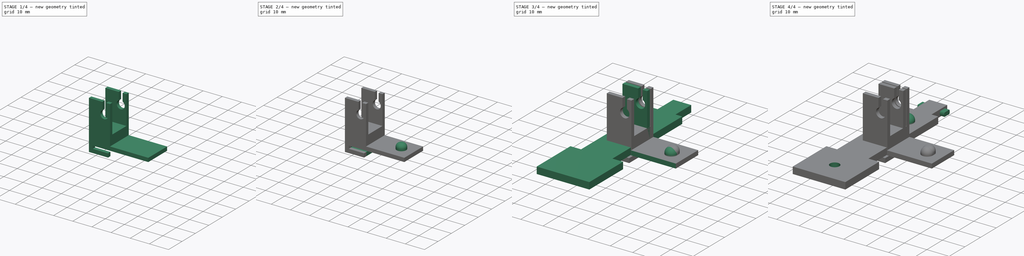
[diagram: build sequence overview — one tinted view per stage of 4, left to right]
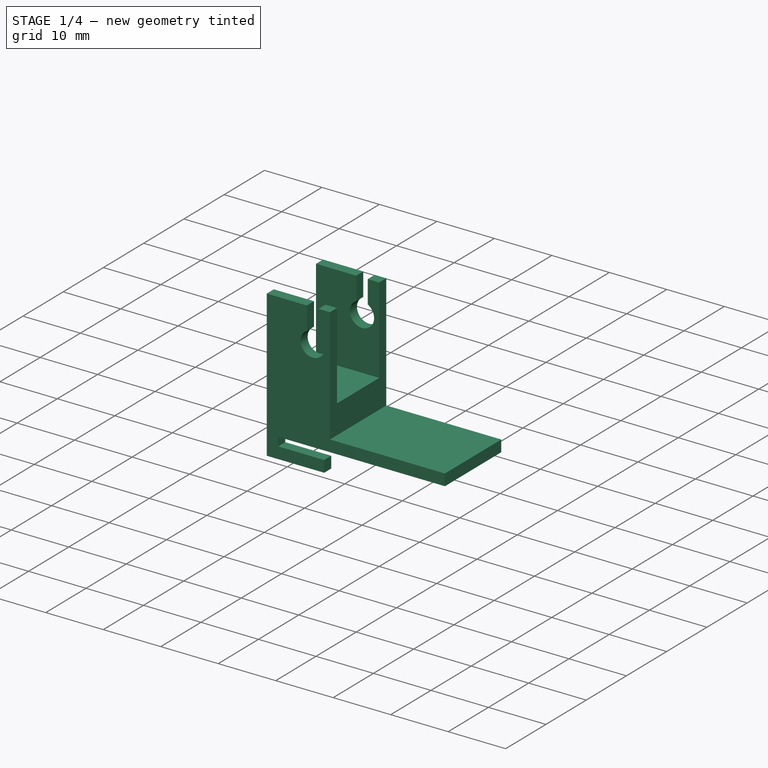
[diagram: stage 1 of 4 — iso view after this stage's code; geometry added in this stage tinted green]
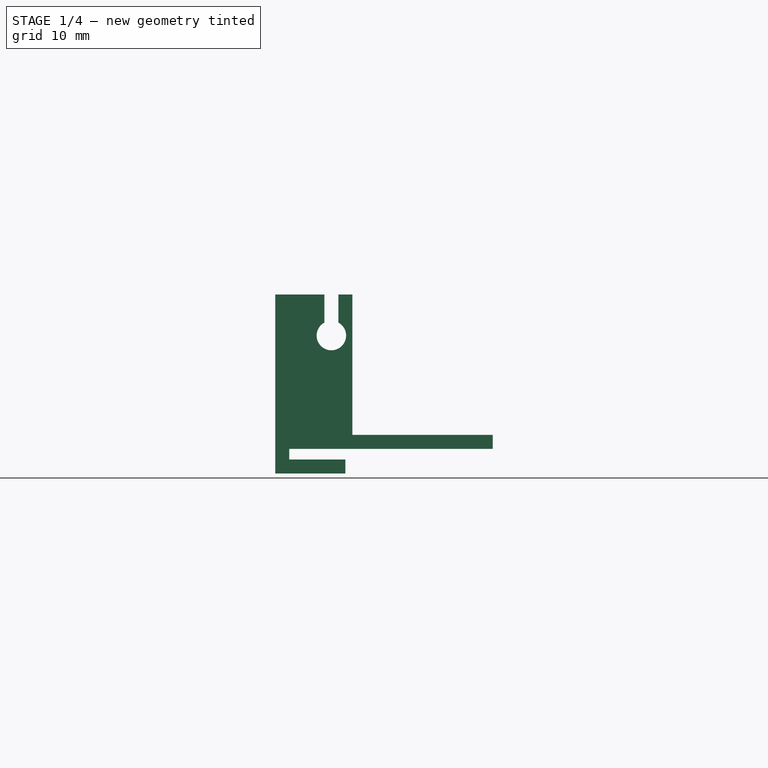
[diagram: stage 1 of 4 — front view after this stage's code; geometry added in this stage tinted green]
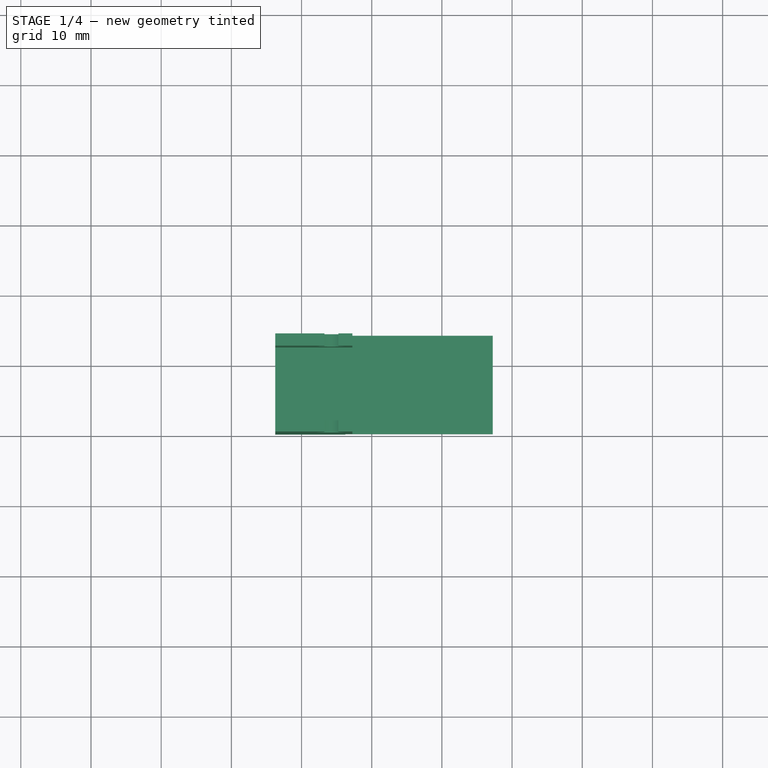
[diagram: stage 1 of 4 — top view after this stage's code; geometry added in this stage tinted green]
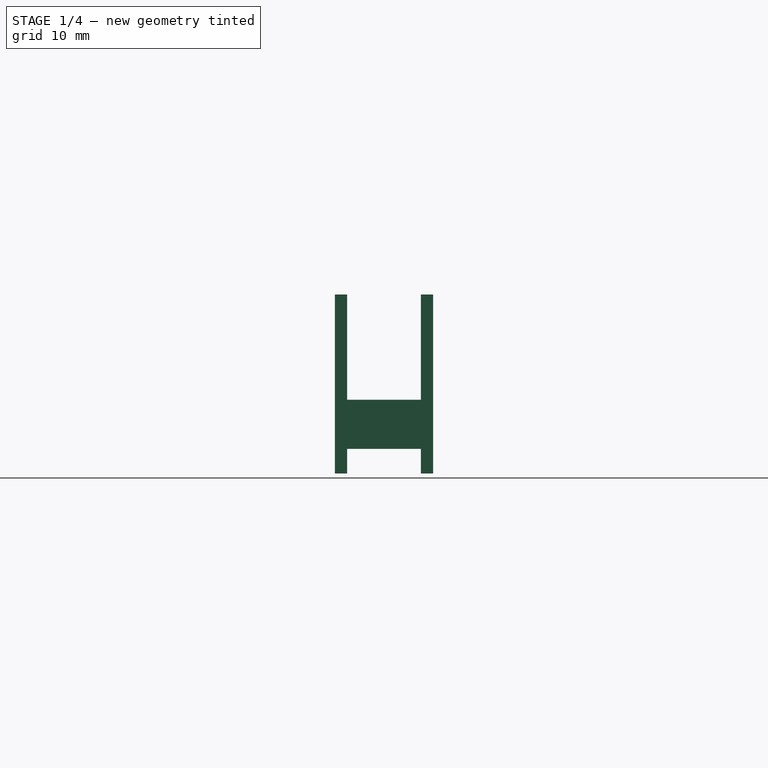
[diagram: stage 1 of 4 — right view after this stage's code; geometry added in this stage tinted green]
FCSTD DOCUMENT  (FreeCAD 0.20R29410 (Git))
Label: widekey_littleassembly
License: All rights reserved
LicenseURL: http://en.wikipedia.org/wiki/All_rights_reserved
objects: Sketcher::SketchObject×11, PartDesign::Pad×10, PartDesign::Fillet×3, PartDesign::Body×2, PartDesign::Pocket×1, PartDesign::Plane×1, App::MeasureDistance×1
note: 42 computed .brp shape members not serialized (recipe doc carries the construction recipe); baked Part::Feature solids carry a one-line shape summary decoded from their .brp

FEATURE [Sketcher::SketchObject] Sketch002
  FullyConstrained = true
  MapMode = 5
  Placement = pos=(0,2,0) rot=(1,0,0;1.5708rad)
  sketch-geometry (13):
    g0: LineSegment StartX=7.25 StartY=0 StartZ=0 EndX=7.25 EndY=22 EndZ=0
    g1: LineSegment StartX=-3.75 StartY=22 StartZ=0 EndX=-3.75 EndY=0 EndZ=0
    g2: LineSegment StartX=-3.75 StartY=0 StartZ=0 EndX=-3.75 EndY=-3.5 EndZ=0
    g3: LineSegment StartX=-3.75 StartY=-3.5 StartZ=0 EndX=6.25 EndY=-3.5 EndZ=0
    g4: LineSegment StartX=6.25 StartY=-3.5 StartZ=0 EndX=6.25 EndY=-1.5 EndZ=0
    g5: LineSegment StartX=6.25 StartY=-1.5 StartZ=0 EndX=-1.75 EndY=-1.5 EndZ=0
    g6: LineSegment StartX=-1.75 StartY=-1.5 StartZ=0 EndX=-1.75 EndY=0 EndZ=0
    g7: LineSegment StartX=-1.75 StartY=0 StartZ=0 EndX=7.25 EndY=0 EndZ=0
    g8: ArcOfCircle CenterX=4.25 CenterY=16.1534 CenterZ=0 NormalX=0 NormalY=0 NormalZ=1 AngleXU=0 Radius=2.1 StartAngle=2.06711 EndAngle=7.35766
    g9: LineSegment StartX=5.25 StartY=18 StartZ=0 EndX=5.25 EndY=22 EndZ=0
    g10: LineSegment StartX=5.25 StartY=22 StartZ=0 EndX=7.25 EndY=22 EndZ=0
    g11: LineSegment StartX=-3.75 StartY=22 StartZ=0 EndX=3.25 EndY=22 EndZ=0
    g12: LineSegment StartX=3.25 StartY=22 StartZ=0 EndX=3.25 EndY=18 EndZ=0
  constraints (40):
    c: Vertical(g0)
    c: PointOnObject(g1,g-1)
    c: Vertical(g1)
    c: DistanceY(g0,g0) = 22
    c: DistanceY(g1,g1) = 22
    c: DistanceX(g1,g0) = 11
    c: DistanceX(g1) = -3.75
    c: Coincident(g1,g2)
    c: Vertical(g2)
    c: Coincident(g2,g3)
    c: Horizontal(g3)
    c: Coincident(g3,g4)
    c: Vertical(g4)
    c: Coincident(g4,g5)
    c: Horizontal(g5)
    c: Coincident(g5,g6)
    c: PointOnObject(g6,g-1)
    c: Vertical(g6)
    c: Coincident(g6,g7)
    c: Coincident(g7,g0)
    c: Horizontal(g7)
    c: DistanceY(g6,g6) = 1.5
    c: DistanceY(g4,g4) = 2
    c: DistanceX(g5,g-1) = 1.75
    c: DistanceX(g3,g3) = 10
    c: Radius(g8) = 2.1
    c: Horizontal(g8,g8)
    c: DistanceX(g8,g8) = 2
    c: DistanceX(g8,g0) = 2
    c: DistanceY(g8,g0) = 4
    c: Vertical(g9)
    c: Coincident(g9,g10)
    c: Coincident(g10,g0)
    c: Horizontal(g10)
    c: Coincident(g1,g11)
    c: Horizontal(g11)
    c: Coincident(g11,g12)
    c: Coincident(g12,g8)
    c: Vertical(g12)
    c: Coincident(g9,g8)
FEATURE [PartDesign::Pad] Pad
  Direction = (0,-1,2e-16)
  Length = 1.75
  Length2 = 10
  Placement = pos=(0,2,0) rot=(1,0,0;1.5708rad)
  Profile = -> Sketch002
  ReferenceAxis = -> Sketch002 [N_Axis]
  Type = 0
FEATURE [Sketcher::SketchObject] Sketch
  FullyConstrained = true
  MapMode = 5
  Placement = pos=(0,2,0) rot=(-1,0,0;1.5708rad)
  Support = -> [Pad]
  sketch-geometry (4):
    g0: LineSegment StartX=-3.75 StartY=0 StartZ=0 EndX=7.25 EndY=0 EndZ=0
    g1: LineSegment StartX=7.25 StartY=0 StartZ=0 EndX=7.25 EndY=-7 EndZ=0
    g2: LineSegment StartX=7.25 StartY=-7 StartZ=0 EndX=-3.75 EndY=-7 EndZ=0
    g3: LineSegment StartX=-3.75 StartY=-7 StartZ=0 EndX=-3.75 EndY=0 EndZ=0
  constraints (12):
    c: Coincident(g0,g1)
    c: Coincident(g1,g2)
    c: Coincident(g2,g3)
    c: Coincident(g3,g0)
    c: Horizontal(g0)
    c: Horizontal(g2)
    c: Vertical(g1)
    c: Vertical(g3)
    c: PointOnObject(g0,g-1)
    c: DistanceX(g0,g0) = 11
    c: DistanceY(g1,g1) = 7
    c: DistanceX(g-1,g0) = 7.25
FEATURE [PartDesign::Pad] Pad001
  BaseFeature = -> Pad
  Direction = (0,1,-2e-16)
  Length = 10.5
  Length2 = 10
  Placement = pos=(0,2,0) rot=(1,0,0;1.5708rad)
  Profile = -> Sketch
  ReferenceAxis = -> Sketch [N_Axis]
  Type = 0
FEATURE [PartDesign::Body] Body001  label="key_1"
  Group = -> [Sketch005,Pad005,Sketch001,Pad006,Sketch006,Pocket,Sketch007,Pad007,Fillet001]
  Origin = -> Origin001
  Placement = pos=(37.75,-1.86552,19.218) rot=(0.707107,-0.707107,0;3.14159rad)
  Tip = -> Fillet001
FEATURE [PartDesign::Plane] DatumPlane
  Length = 62.4725
  MapMode = 5
  Placement = pos=(0,12.5,-2.3e-15) rot=(-1,0,0;1.5708rad)
  ResizeMode = 0
  Support = -> [Pad001]
  Width = 60.2225
FEATURE [Sketcher::SketchObject] CopySketch003
  AttachmentOffset = pos=(0,0,0) rot=(-1,0,0;3.14159rad)
  FullyConstrained = true
  MapMode = 5
  Placement = pos=(0,12.5,-2.3e-15) rot=(-1,0,0;4.71239rad)
  Support = -> [DatumPlane]
  sketch-geometry (13):
    g0: LineSegment StartX=7.25 StartY=0 StartZ=0 EndX=7.25 EndY=22 EndZ=0
    g1: LineSegment StartX=-3.75 StartY=22 StartZ=0 EndX=-3.75 EndY=0 EndZ=0
    g2: LineSegment StartX=-3.75 StartY=0 StartZ=0 EndX=-3.75 EndY=-3.5 EndZ=0
    g3: LineSegment StartX=-3.75 StartY=-3.5 StartZ=0 EndX=6.25 EndY=-3.5 EndZ=0
    g4: LineSegment StartX=6.25 StartY=-3.5 StartZ=0 EndX=6.25 EndY=-1.5 EndZ=0
    g5: LineSegment StartX=6.25 StartY=-1.5 StartZ=0 EndX=-1.75 EndY=-1.5 EndZ=0
    g6: LineSegment StartX=-1.75 StartY=-1.5 StartZ=0 EndX=-1.75 EndY=0 EndZ=0
    g7: LineSegment StartX=-1.75 StartY=0 StartZ=0 EndX=7.25 EndY=0 EndZ=0
    g8: ArcOfCircle CenterX=4.25 CenterY=16.1534 CenterZ=0 NormalX=0 NormalY=0 NormalZ=1 AngleXU=0 Radius=2.1 StartAngle=2.06711 EndAngle=7.35766
    g9: LineSegment StartX=5.25 StartY=18 StartZ=0 EndX=5.25 EndY=22 EndZ=0
    g10: LineSegment StartX=5.25 StartY=22 StartZ=0 EndX=7.25 EndY=22 EndZ=0
    g11: LineSegment StartX=-3.75 StartY=22 StartZ=0 EndX=3.25 EndY=22 EndZ=0
    g12: LineSegment StartX=3.25 StartY=22 StartZ=0 EndX=3.25 EndY=18 EndZ=0
  constraints (40):
    c: Vertical(g0)
    c: PointOnObject(g1,g-1)
    c: Vertical(g1)
    c: DistanceY(g0,g0) = 22
    c: DistanceY(g1,g1) = 22
    c: DistanceX(g1,g0) = 11
    c: DistanceX(g1) = -3.75
    c: Coincident(g1,g2)
    c: Vertical(g2)
    c: Coincident(g2,g3)
    c: Horizontal(g3)
    c: Coincident(g3,g4)
    c: Vertical(g4)
    c: Coincident(g4,g5)
    c: Horizontal(g5)
    c: Coincident(g5,g6)
    c: PointOnObject(g6,g-1)
    c: Vertical(g6)
    c: Coincident(g6,g7)
    c: Coincident(g7,g0)
    c: Horizontal(g7)
    c: DistanceY(g6,g6) = 1.5
    c: DistanceY(g4,g4) = 2
    c: DistanceX(g5,g-1) = 1.75
    c: DistanceX(g3,g3) = 10
    c: Radius(g8) = 2.1
    c: Horizontal(g8,g8)
    c: DistanceX(g8,g8) = 2
    c: DistanceX(g8,g0) = 2
    c: DistanceY(g8,g0) = 4
    c: Vertical(g9)
    c: Coincident(g9,g10)
    c: Coincident(g10,g0)
    c: Horizontal(g10)
    c: Coincident(g1,g11)
    c: Horizontal(g11)
    c: Coincident(g11,g12)
    c: Coincident(g12,g8)
    c: Vertical(g12)
    c: Coincident(g9,g8)
FEATURE [PartDesign::Pad] Pad002
  BaseFeature = -> Pad001
  Direction = (0,1,-3e-16)
  Length = 1.75
  Length2 = 10
  Placement = pos=(0,2,0) rot=(1,0,0;1.5708rad)
  Profile = -> CopySketch003
  ReferenceAxis = -> Pad001 [Edge38]
  Type = 0
FEATURE [Sketcher::SketchObject] Sketch003
  FullyConstrained = true
  MapMode = 5
  Placement = pos=(7.25,2,0) rot=(0.707107,0,0.707107;3.14159rad)
  Support = -> [Pad002]
  sketch-geometry (4):
    g0: LineSegment StartX=0 StartY=1.75 StartZ=0 EndX=2 EndY=1.75 EndZ=0
    g1: LineSegment StartX=2 StartY=1.75 StartZ=0 EndX=2 EndY=-12.25 EndZ=0
    g2: LineSegment StartX=2 StartY=-12.25 StartZ=0 EndX=0 EndY=-12.25 EndZ=0
    g3: LineSegment StartX=0 StartY=-12.25 StartZ=0 EndX=0 EndY=1.75 EndZ=0
  constraints (12):
    c: Coincident(g0,g1)
    c: Coincident(g1,g2)
    c: Coincident(g2,g3)
    c: Coincident(g3,g0)
    c: Horizontal(g0)
    c: Horizontal(g2)
    c: Vertical(g1)
    c: Vertical(g3)
    c: PointOnObject(g0,g-2)
    c: DistanceY(g1,g1) = 14
    c: DistanceY(g-1,g0) = 1.75
    c: DistanceX(g0,g0) = 2
FEATURE [PartDesign::Pad] Pad003
  BaseFeature = -> Pad002
  Direction = (1,0,-2e-16)
  Length = 20
  Length2 = 10
  Placement = pos=(0,2,0) rot=(1,0,0;1.5708rad)
  Profile = -> Sketch003
  ReferenceAxis = -> Sketch003 [N_Axis]
  Type = 0
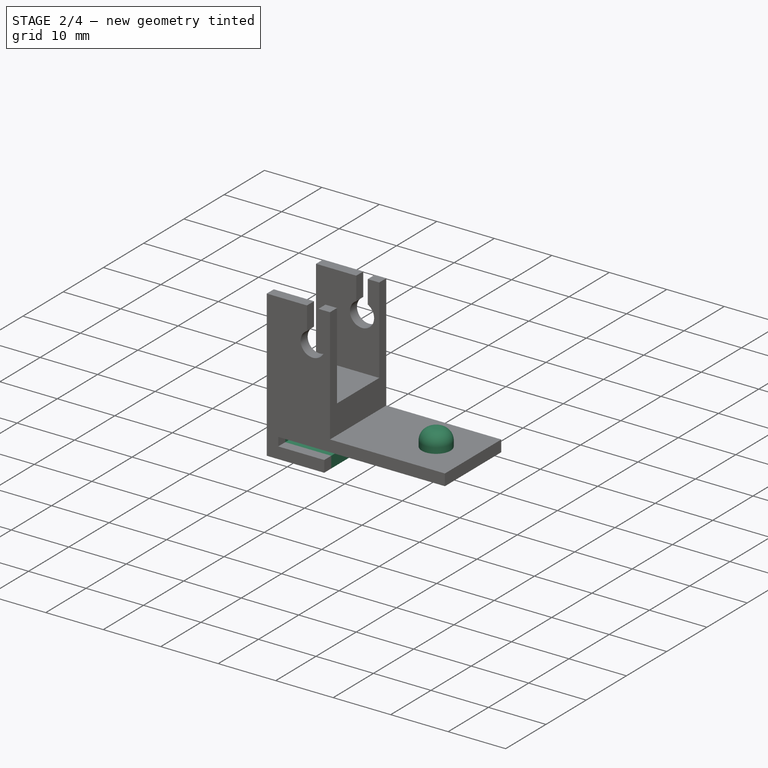
[diagram: stage 2 of 4 — iso view after this stage's code; geometry added in this stage tinted green]
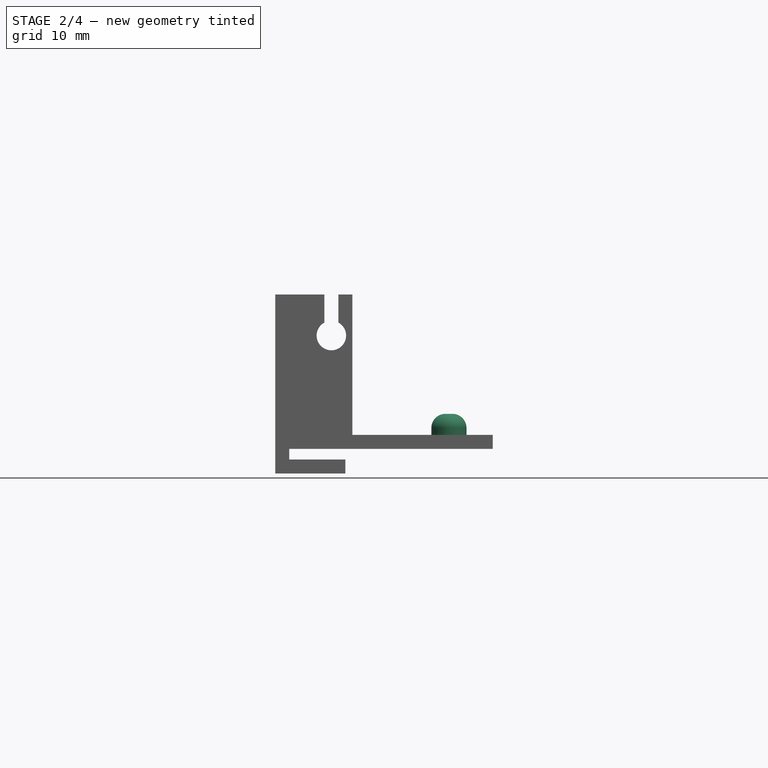
[diagram: stage 2 of 4 — front view after this stage's code; geometry added in this stage tinted green]
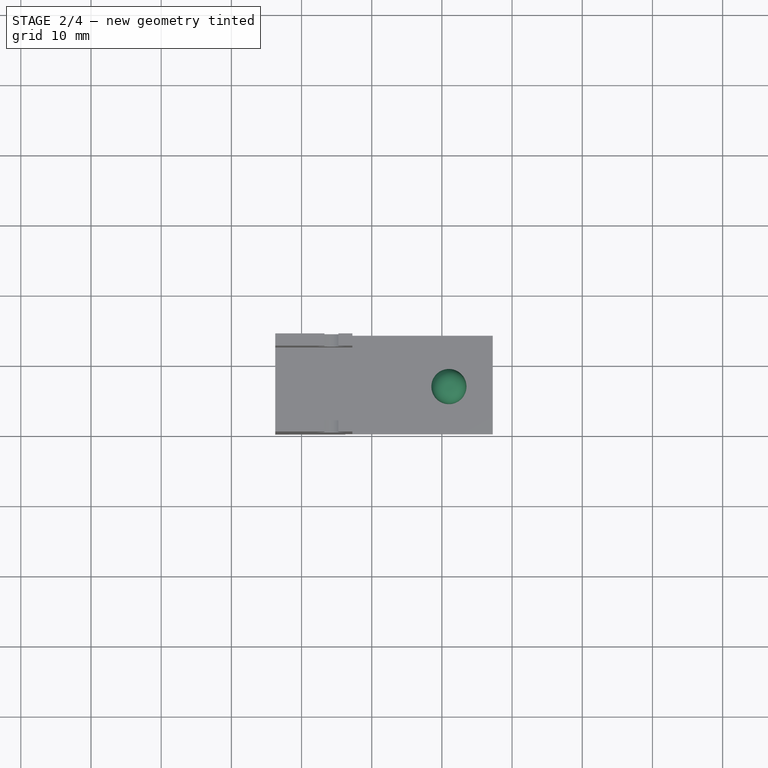
[diagram: stage 2 of 4 — top view after this stage's code; geometry added in this stage tinted green]
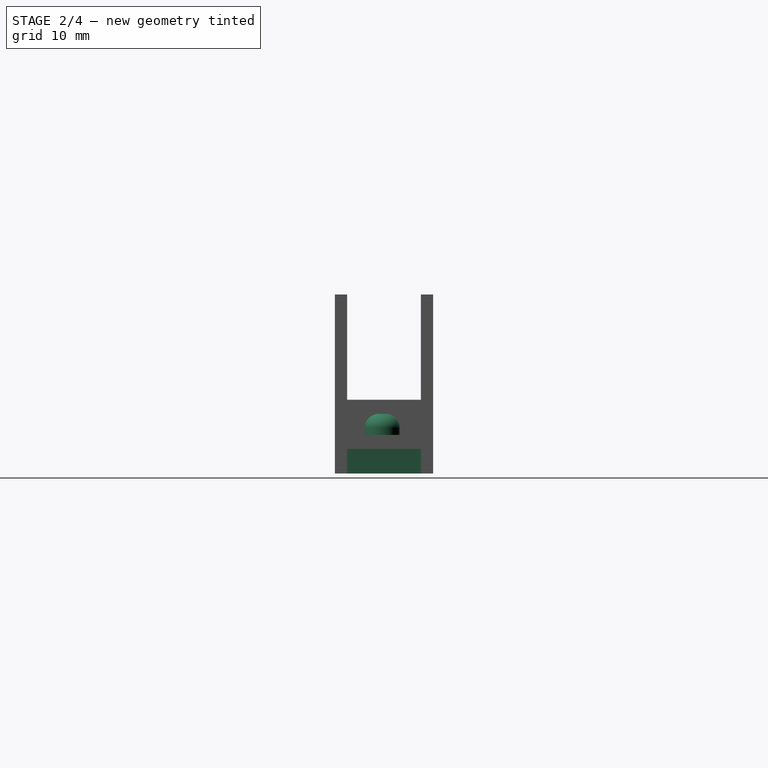
[diagram: stage 2 of 4 — right view after this stage's code; geometry added in this stage tinted green]
FEATURE [Sketcher::SketchObject] Sketch004
  FullyConstrained = true
  MapMode = 5
  Placement = pos=(4e-16,2,2) rot=(0,0,1;3.14159rad)
  Support = -> [Pad003]
  sketch-geometry (1):
    g0: Circle CenterX=-21 CenterY=-5 CenterZ=0 NormalX=0 NormalY=0 NormalZ=1 AngleXU=0 Radius=2.5
  constraints (3):
    c: Diameter(g0) = 5
    c: DistanceY(g0,g-1) = 5
    c: DistanceX(g0,g-1) = 21
FEATURE [PartDesign::Pad] Pad004
  BaseFeature = -> Pad003
  Direction = (2e-16,3e-16,1)
  Length = 3
  Length2 = 10
  Placement = pos=(0,2,0) rot=(1,0,0;1.5708rad)
  Profile = -> Sketch004
  ReferenceAxis = -> Sketch004 [N_Axis]
  Type = 0
FEATURE [PartDesign::Fillet] Fillet002
  Base = -> Pad004 [Edge103]
  BaseFeature = -> Pad004
  Placement = pos=(0,2,0) rot=(1,0,0;1.5708rad)
  Radius = 2
  SupportTransform = false
  UseAllEdges = false
FEATURE [App::MeasureDistance] Distance  label="Distance: 10.50 mm"
  Distance = 10.5033
  P1 = (1,-6,22.5)
  P2 = (1,4.5033,22.5)
FEATURE [Sketcher::SketchObject] Sketch009
  FullyConstrained = true
  MapMode = 5
  Placement = pos=(0,2,0) rot=(-1,0,0;1.5708rad)
  Support = -> [Fillet002]
  sketch-geometry (7):
    g0: LineSegment StartX=-3.75 StartY=3.5 StartZ=0 EndX=6.25 EndY=3.5 EndZ=0
    g1: LineSegment StartX=6.25 StartY=3.5 StartZ=0 EndX=6.25 EndY=1.5 EndZ=0
    g2: LineSegment StartX=-3.75 StartY=1.5 StartZ=0 EndX=-3.75 EndY=3.5 EndZ=0
    g3: LineSegment StartX=-3.75 StartY=1.5 StartZ=0 EndX=-3.75 EndY=0 EndZ=0
    g4: LineSegment StartX=-3.75 StartY=0 StartZ=0 EndX=-1.75 EndY=0 EndZ=0
    g5: LineSegment StartX=-1.75 StartY=0 StartZ=0 EndX=-1.75 EndY=1.5 EndZ=0
    g6: LineSegment StartX=-1.75 StartY=1.5 StartZ=0 EndX=6.25 EndY=1.5 EndZ=0
  constraints (21):
    c: Coincident(g0,g1)
    c: Coincident(g2,g0)
    c: Horizontal(g0)
    c: Vertical(g1)
    c: Vertical(g2)
    c: DistanceX(g0,g0) = 10
    c: DistanceY(g1,g1) = 2
    c: DistanceY(g-1,g0) = 3.5
    c: DistanceX(g-1,g0) = 6.25
    c: Coincident(g2,g3)
    c: PointOnObject(g3,g-1)
    c: Vertical(g3)
    c: Coincident(g3,g4)
    c: Horizontal(g4)
    c: Coincident(g4,g5)
    c: Vertical(g5)
    c: Coincident(g5,g6)
    c: Coincident(g6,g1)
    c: Horizontal(g6)
    c: DistanceX(g6,g6) = 8
    c: DistanceY(g3,g3) = 1.5
FEATURE [PartDesign::Pad] Pad009
  BaseFeature = -> Fillet002
  Direction = (0,1,-2e-16)
  Length = 10.5
  Length2 = 10
  Placement = pos=(0,2,0) rot=(1,0,0;1.5708rad)
  Profile = -> Sketch009
  ReferenceAxis = -> Sketch009 [N_Axis]
  Type = 0
FEATURE [PartDesign::Body] Body
  Group = -> [Sketch002,Pad,Sketch,Pad001,CopySketch003,Pad002,Sketch003,Pad003,Sketch004,Pad004,DatumPlane,Fillet,Sketch008,Pad008,Fillet002,Sketch009,Pad009]
  Origin = -> Origin
  Placement = pos=(-6.25,-8,0.5) rot=(0,0,1;0rad)
  Tip = -> Pad009
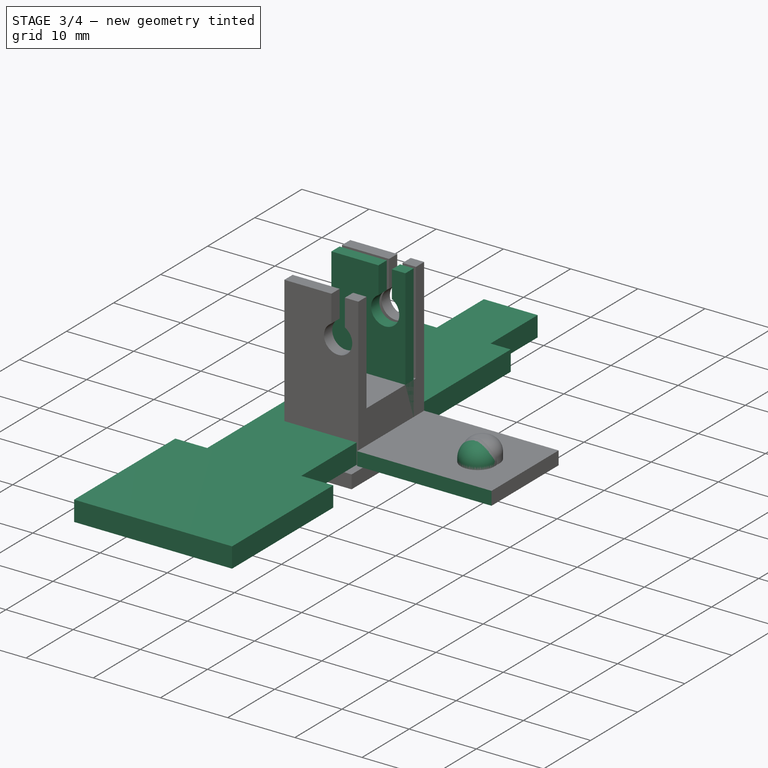
[diagram: stage 3 of 4 — iso view after this stage's code; geometry added in this stage tinted green]
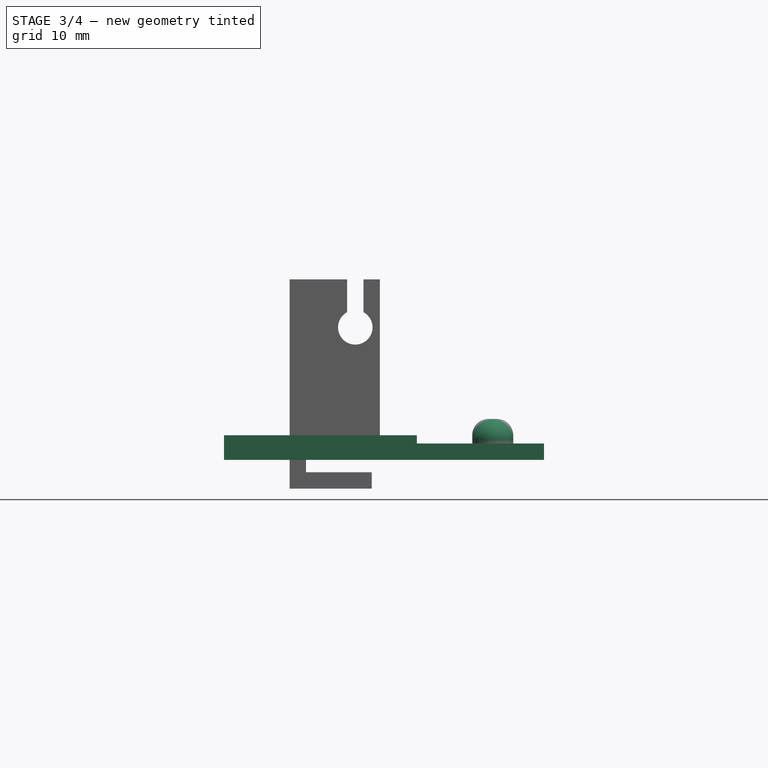
[diagram: stage 3 of 4 — front view after this stage's code; geometry added in this stage tinted green]
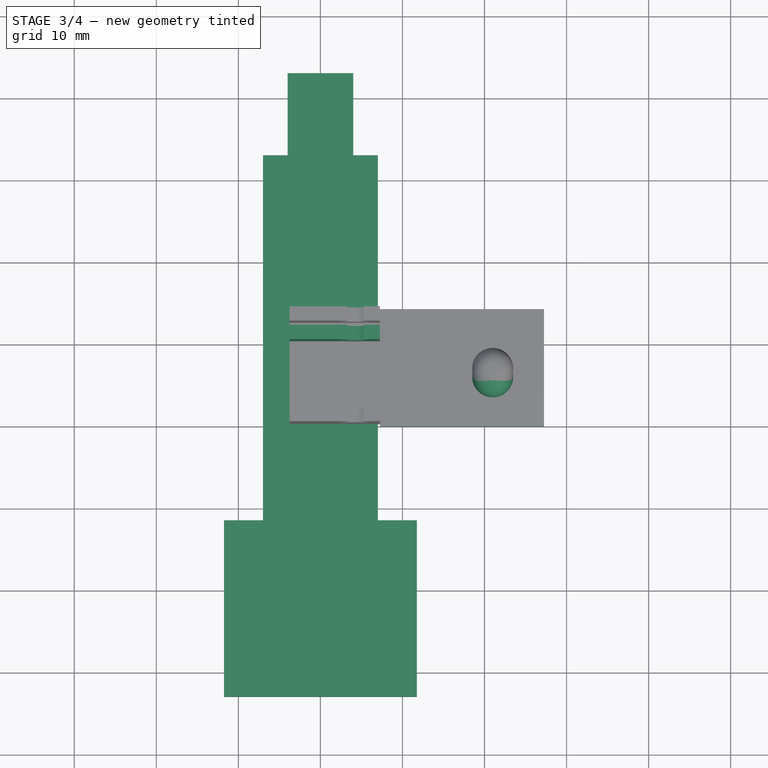
[diagram: stage 3 of 4 — top view after this stage's code; geometry added in this stage tinted green]
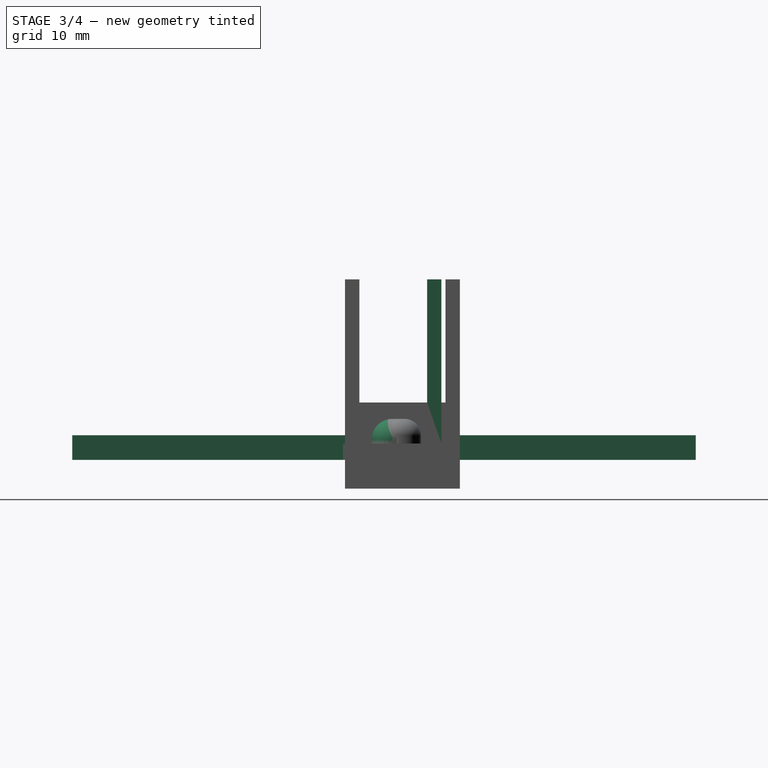
[diagram: stage 3 of 4 — right view after this stage's code; geometry added in this stage tinted green]
FEATURE [Sketcher::SketchObject] Sketch005
  FullyConstrained = true
  MapMode = 5
  Support = -> [XY_Plane001]
  sketch-geometry (13):
    g0: LineSegment StartX=-11.75 StartY=-33 StartZ=0 EndX=11.75 EndY=-33 EndZ=0
    g1: LineSegment StartX=11.75 StartY=-33 StartZ=0 EndX=11.75 EndY=-11.5 EndZ=0
    g2: LineSegment StartX=11.75 StartY=-11.5 StartZ=0 EndX=7 EndY=-11.5 EndZ=0
    g3: LineSegment StartX=7 StartY=-11.5 StartZ=0 EndX=7 EndY=33 EndZ=0
    g4: LineSegment StartX=7 StartY=33 StartZ=0 EndX=4 EndY=33 EndZ=0
    g5: LineSegment StartX=4 StartY=33 StartZ=0 EndX=4 EndY=43 EndZ=0
    g6: LineSegment StartX=4 StartY=43 StartZ=0 EndX=-4 EndY=43 EndZ=0
    g7: LineSegment StartX=-4 StartY=43 StartZ=0 EndX=-4 EndY=33 EndZ=0
    g8: LineSegment StartX=-4 StartY=33 StartZ=0 EndX=-7 EndY=33 EndZ=0
    g9: LineSegment StartX=-4 StartY=33 StartZ=0 EndX=4 EndY=33 EndZ=0
    g10: LineSegment StartX=-11.75 StartY=-33 StartZ=0 EndX=-11.75 EndY=-11.5 EndZ=0
    g11: LineSegment StartX=-11.75 StartY=-11.5 StartZ=0 EndX=-7 EndY=-11.5 EndZ=0
    g12: LineSegment StartX=-7 StartY=-11.5 StartZ=0 EndX=-7 EndY=33 EndZ=0
  constraints (38):
    c: Horizontal(g0)
    c: Coincident(g0,g1)
    c: Vertical(g1)
    c: Coincident(g1,g2)
    c: Coincident(g2,g3)
    c: Vertical(g3)
    c: Coincident(g3,g4)
    c: Coincident(g4,g5)
    c: Coincident(g5,g6)
    c: Coincident(g6,g7)
    c: Coincident(g7,g8)
    c: Horizontal(g8)
    c: Horizontal(g4)
    c: Horizontal(g6)
    c: Vertical(g7)
    c: Vertical(g5)
    c: Horizontal(g2)
    c: DistanceX(g0,g0) = 23.5
    c: DistanceX(g8,g3) = 14
    c: DistanceX(g8,g8) = 3
    c: DistanceY(g5,g5) = 10
    c: Coincident(g9,g7)
    c: Coincident(g9,g4)
    c: Horizontal(g9)
    c: DistanceY(g0,g8) = 66
    c: DistanceY(g1,g1) = 21.5
    c: DistanceY(g0,g-1) = 33
    c: DistanceX(g7,g-1) = 4
    c: Coincident(g0,g10)
    c: Vertical(g10)
    c: Coincident(g10,g11)
    c: Coincident(g11,g12)
    c: Coincident(g12,g8)
    c: Vertical(g12)
    c: DistanceY(g10,g10) = 21.5
    c: Horizontal(g11)
    c: Equal(g11,g2)
    c: DistanceX(g6,g6) = 8
FEATURE [PartDesign::Pad] Pad005
  Direction = (0,0,1)
  Length = 3
  Length2 = 100
  Profile = -> Sketch005
  Type = 0
FEATURE [PartDesign::Fillet] Fillet
  Base = -> Pad004 [Edge106]
  BaseFeature = -> Pad004
  Placement = pos=(0,2,0) rot=(1,0,0;1.5708rad)
  Radius = 2.5
  SupportTransform = false
  UseAllEdges = false
FEATURE [Sketcher::SketchObject] Sketch008
  FullyConstrained = true
  MapMode = 5
  Placement = pos=(0,2,0) rot=(-1,0,0;1.5708rad)
  Support = -> [Fillet]
  sketch-geometry (6):
    g0: LineSegment StartX=-3.75 StartY=0 StartZ=0 EndX=-3.75 EndY=3.5 EndZ=0
    g1: LineSegment StartX=-3.75 StartY=3.5 StartZ=0 EndX=6.25 EndY=3.5 EndZ=0
    g2: LineSegment StartX=6.25 StartY=3.5 StartZ=0 EndX=6.25 EndY=1.5 EndZ=0
    g3: LineSegment StartX=6.25 StartY=1.5 StartZ=0 EndX=-1.75 EndY=1.5 EndZ=0
    g4: LineSegment StartX=-1.75 StartY=1.5 StartZ=0 EndX=-1.75 EndY=0 EndZ=0
    g5: LineSegment StartX=-1.75 StartY=0 StartZ=0 EndX=-3.75 EndY=0 EndZ=0
  constraints (18):
    c: Vertical(g0)
    c: Coincident(g0,g1)
    c: Horizontal(g1)
    c: Coincident(g1,g2)
    c: Vertical(g2)
    c: Coincident(g2,g3)
    c: Horizontal(g3)
    c: Coincident(g3,g4)
    c: Vertical(g4)
    c: Coincident(g4,g5)
    c: Coincident(g5,g0)
    c: Horizontal(g5)
    c: DistanceX(g1,g1) = 10
    c: DistanceY(g0,g0) = 3.5
    c: DistanceY(g2,g2) = 2
    c: DistanceY(g4,g-1) = 0
    c: DistanceX(g5,g5) = 2
    c: DistanceX(g4,g-1) = 1.75
FEATURE [PartDesign::Pad] Pad008
  BaseFeature = -> Fillet
  Direction = (0,1,-7e-16)
  Length = 10
  Length2 = 10
  Placement = pos=(0,2,0) rot=(1,0,0;1.5708rad)
  Profile = -> Sketch008
  ReferenceAxis = -> Sketch008 [N_Axis]
  Type = 0
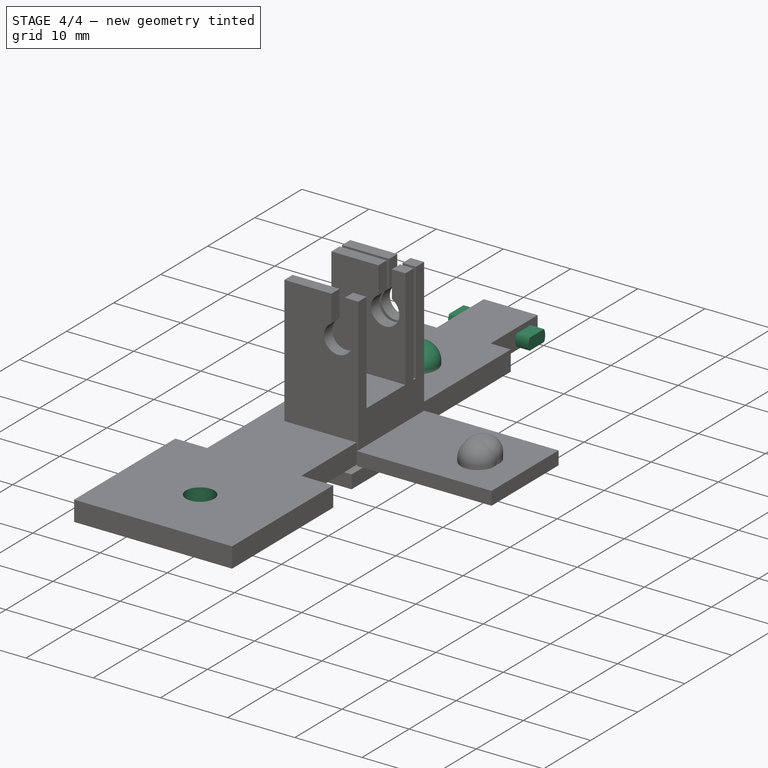
[diagram: stage 4 of 4 — iso view after this stage's code; geometry added in this stage tinted green]
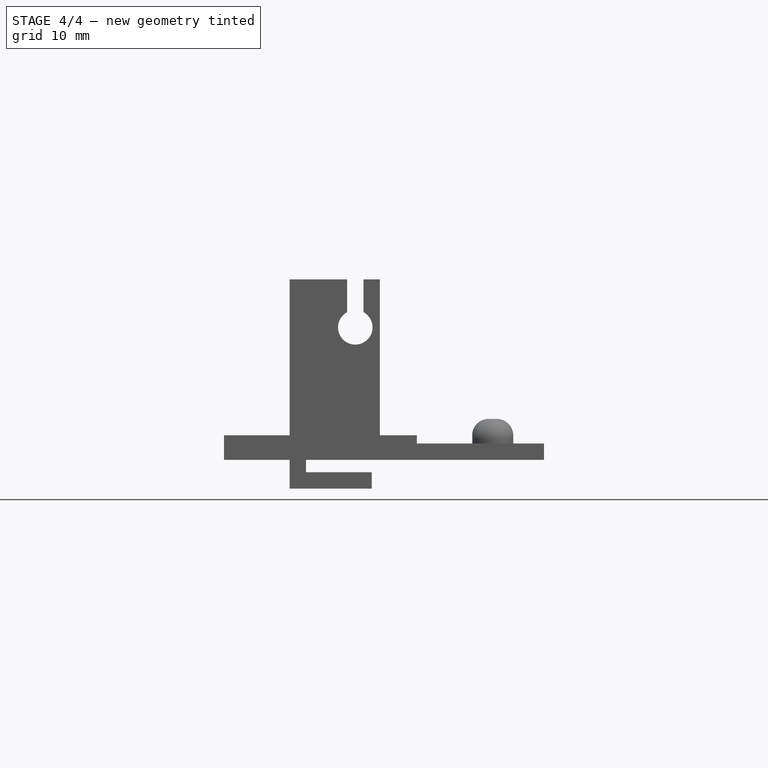
[diagram: stage 4 of 4 — front view after this stage's code; geometry added in this stage tinted green]
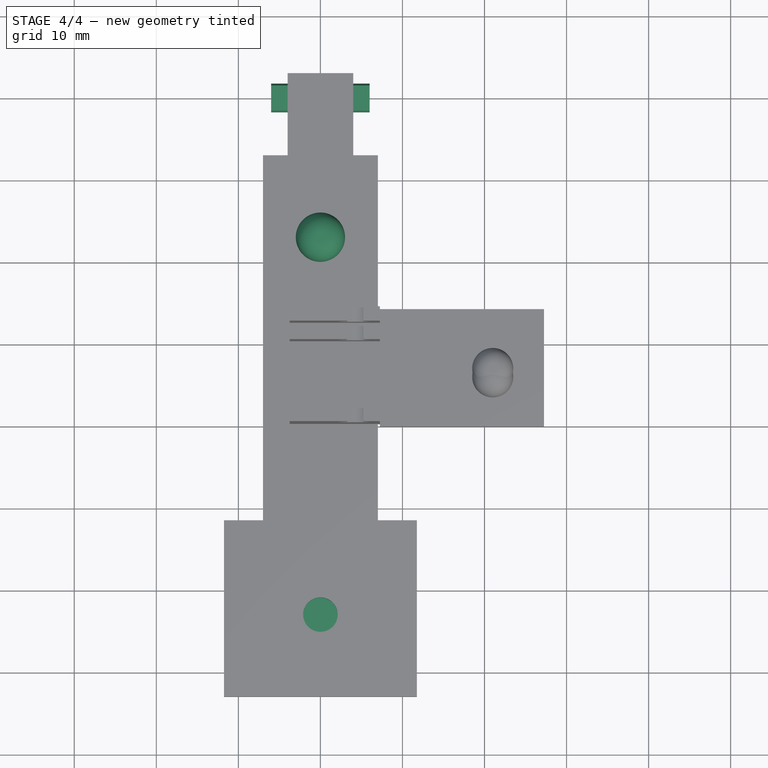
[diagram: stage 4 of 4 — top view after this stage's code; geometry added in this stage tinted green]
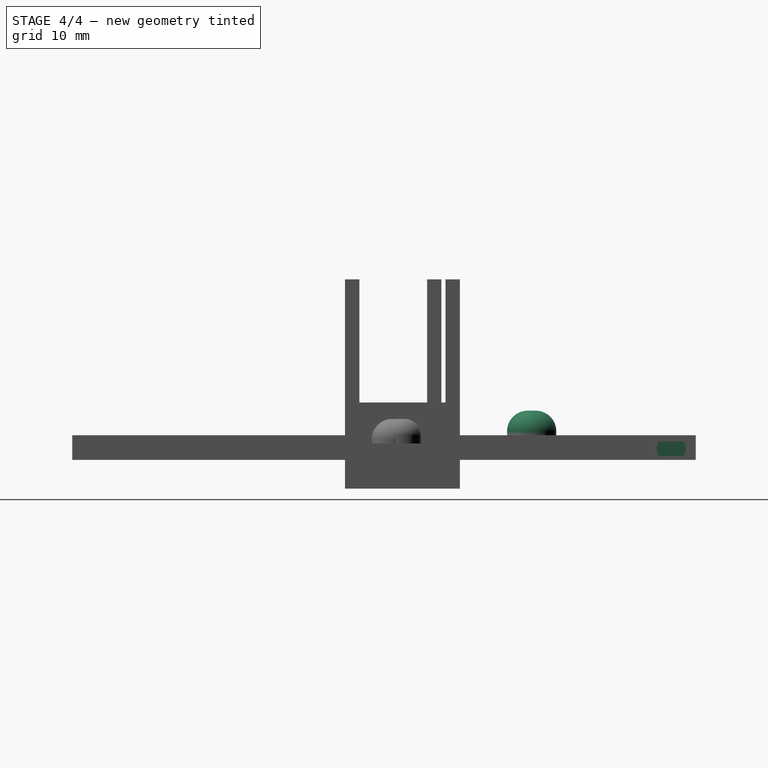
[diagram: stage 4 of 4 — right view after this stage's code; geometry added in this stage tinted green]
FEATURE [Sketcher::SketchObject] Sketch001
  FullyConstrained = false
  MapMode = 5
  Placement = pos=(0,0,0) rot=(0.57735,0.57735,0.57735;2.0944rad)
  Support = -> [YZ_Plane001]
  sketch-geometry (4):
    g0: ArcOfCircle CenterX=40 CenterY=1.34774 CenterZ=0 NormalX=0 NormalY=0 NormalZ=1 AngleXU=0 Radius=1.75 StartAngle=5.75959 EndAngle=6.80678
    g1: ArcOfCircle CenterX=40 CenterY=1.34774 CenterZ=0 NormalX=0 NormalY=0 NormalZ=1 AngleXU=0 Radius=1.75 StartAngle=2.61799 EndAngle=3.66519
    g2: LineSegment StartX=41.5155 StartY=2.22274 StartZ=0 EndX=38.4845 EndY=2.22274 EndZ=0
    g3: LineSegment StartX=41.5155 StartY=0.472742 StartZ=0 EndX=38.4845 EndY=0.472742 EndZ=0
  constraints (12):
    c: Radius(g1) = 1.75
    c: Radius(g0) = 1.75
    c: Coincident(g2,g0)
    c: Coincident(g2,g1)
    c: Horizontal(g2)
    c: Coincident(g3,g0)
    c: Coincident(g3,g1)
    c: Horizontal(g3)
    c: Equal(g2,g3)
    c: DistanceY(g0,g0) = 1.75
    c: Coincident(g1,g0)
    c: DistanceX(g-1,g0) = 40
FEATURE [PartDesign::Pad] Pad006
  BaseFeature = -> Pad005
  Direction = (1,-2e-16,3e-16)
  Length = 12
  Length2 = 100
  Midplane = true
  Profile = -> Sketch001
  Type = 0
FEATURE [Sketcher::SketchObject] Sketch006
  FullyConstrained = true
  MapMode = 5
  Placement = pos=(0,0,3) rot=(0,0,1;0rad)
  Support = -> [Pad006]
  sketch-geometry (1):
    g0: Circle CenterX=0 CenterY=-23 CenterZ=0 NormalX=0 NormalY=0 NormalZ=1 AngleXU=0 Radius=2.1
  constraints (3):
    c: Diameter(g0) = 4.2
    c: DistanceX(g0,g-1) = 0
    c: DistanceY(g0,g-1) = 23
FEATURE [PartDesign::Pocket] Pocket
  BaseFeature = -> Pad006
  Direction = (0,0,-1)
  Length = 2
  Length2 = 5
  Profile = -> Sketch006
  ReferenceAxis = -> Sketch006 [N_Axis]
  Type = 0
FEATURE [Sketcher::SketchObject] Sketch007
  FullyConstrained = true
  MapMode = 5
  Placement = pos=(0,0,3) rot=(0,0,1;0rad)
  Support = -> [Pocket]
  sketch-geometry (1):
    g0: Circle CenterX=0 CenterY=23 CenterZ=0 NormalX=0 NormalY=0 NormalZ=1 AngleXU=0 Radius=3
  constraints (3):
    c: PointOnObject(g0,g-2)
    c: Diameter(g0) = 6
    c: DistanceY(g-1,g0) = 23
FEATURE [PartDesign::Pad] Pad007
  BaseFeature = -> Pocket
  Direction = (0,0,1)
  Length = 3
  Length2 = 10
  Profile = -> Sketch007
  ReferenceAxis = -> Sketch007 [N_Axis]
  Type = 0
FEATURE [PartDesign::Fillet] Fillet001
  Base = -> Pad007 [Edge50]
  BaseFeature = -> Pad007
  Radius = 2.5
  SupportTransform = false
  UseAllEdges = false
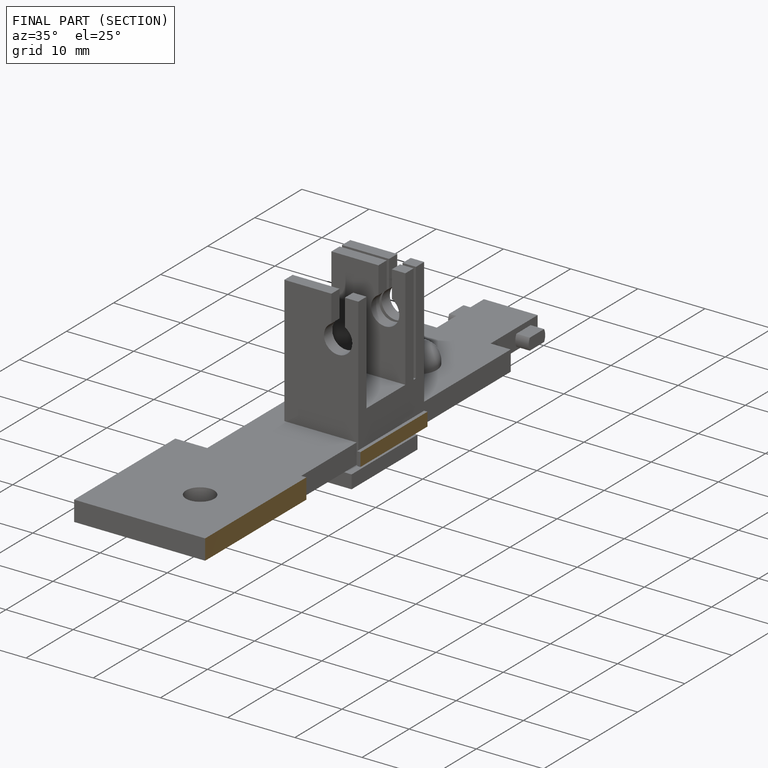
[diagram: finished part — half-section view (interior)]
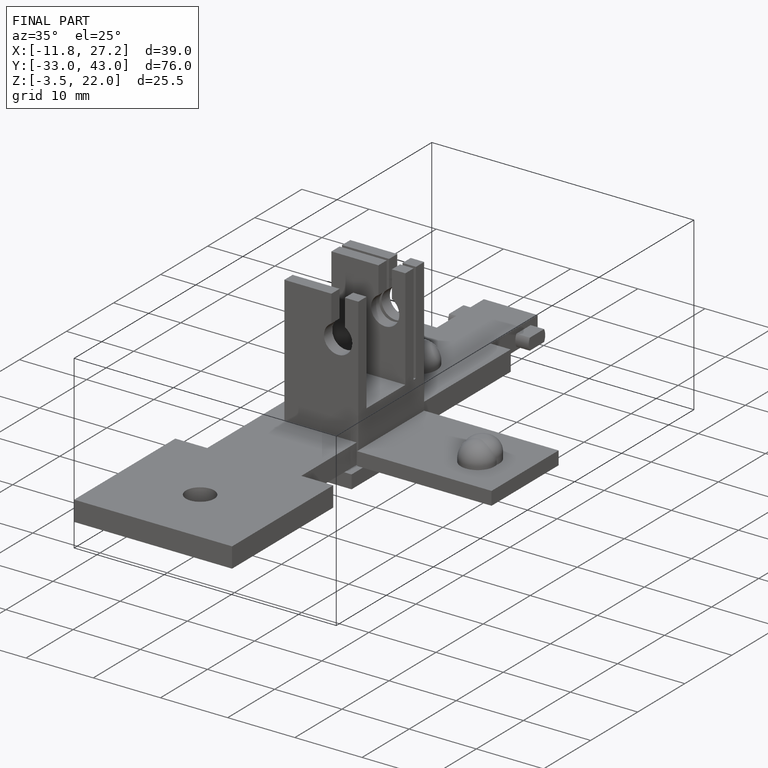
[diagram: finished part — iso view with bounding-box wireframe]
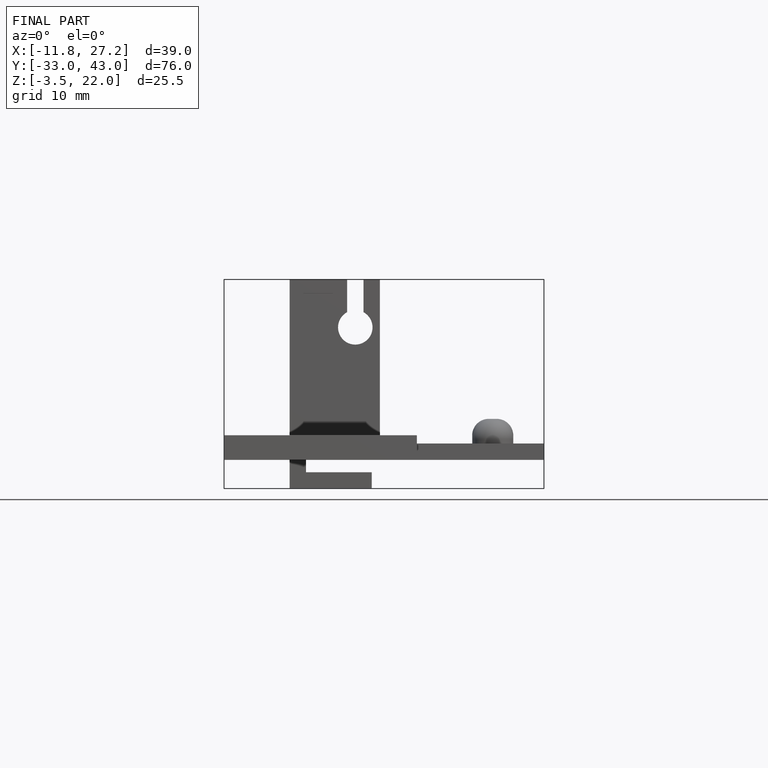
[diagram: finished part — front view with bounding-box wireframe]
